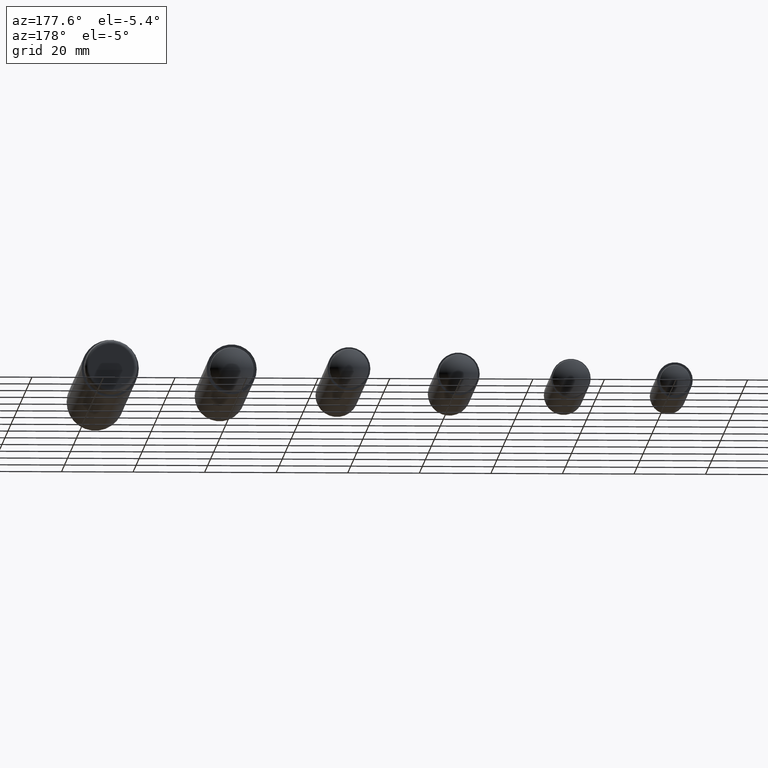
[diagram: clean part render]
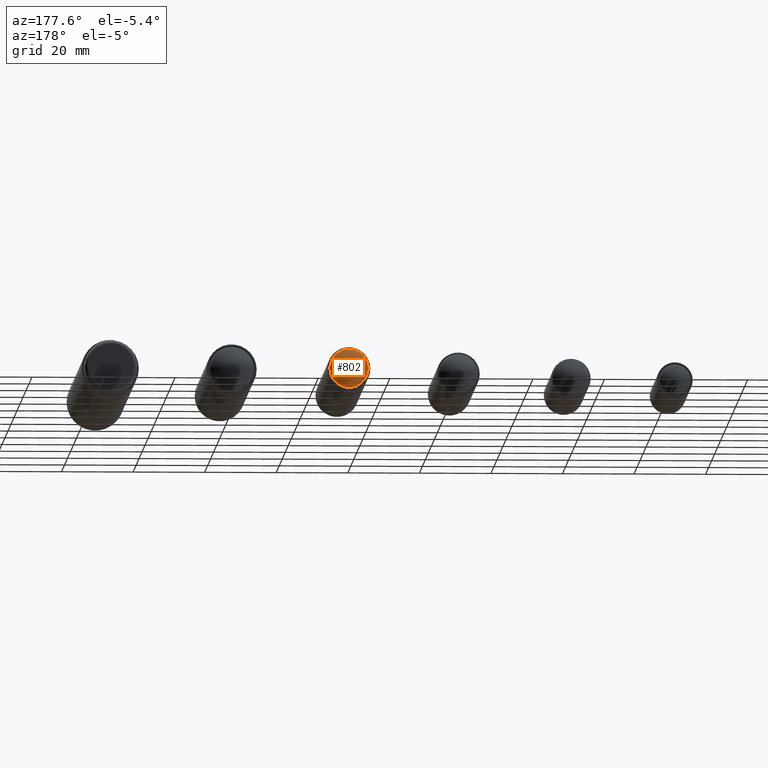
[diagram: same view with one face highlighted and labeled with its STEP entity id]
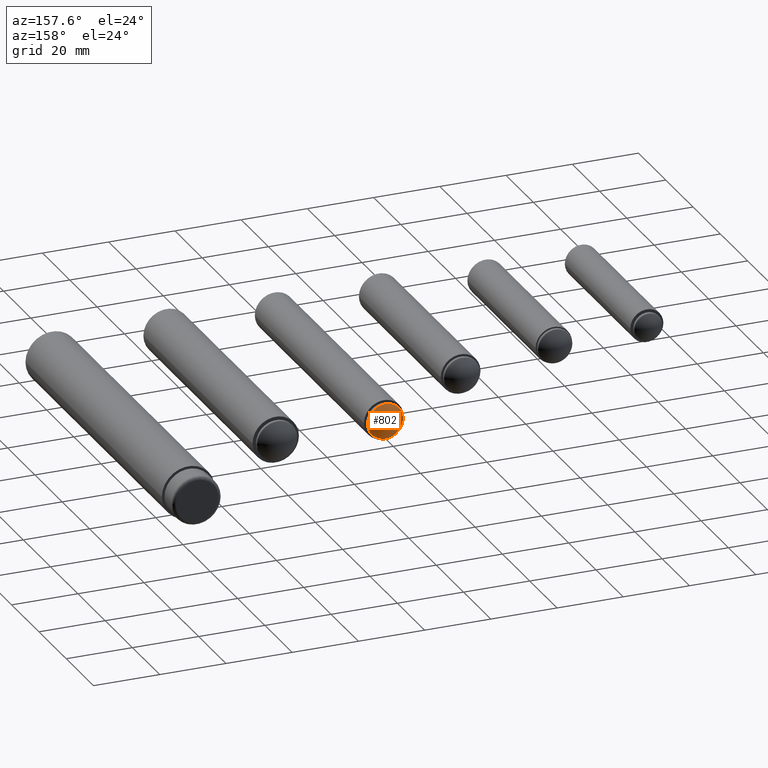
[diagram: same view with one face highlighted and labeled with its STEP entity id]
A machine part, auxiliary view. The second image highlights one B-rep face of the part: STEP entity #802.
A second angle (auxiliary view) of the same face is appended — the face is thin or edge-on in the first view.
In plain terms, the highlighted spherical surface has radius 7.3 mm.
Its self-contained STEP definition (entity closure, byte-faithful):
#110=SPHERICAL_SURFACE('',#939,7.29999999999999);
#292=FACE_OUTER_BOUND('',#393,.T.);
#393=EDGE_LOOP('',(#693));
#475=CIRCLE('',#938,5.36764705882353);
#535=VERTEX_POINT('',#1483);
#595=EDGE_CURVE('',#535,#535,#475,.T.);
#693=ORIENTED_EDGE('',*,*,#595,.F.);
#802=ADVANCED_FACE('',(#292),#110,.T.);
#938=AXIS2_PLACEMENT_3D('',#1484,#1206,#1207);
#939=AXIS2_PLACEMENT_3D('',#1485,#1208,#1209);
#1206=DIRECTION('center_axis',(4.10526254053798E-16,-1.,0.));
#1207=DIRECTION('ref_axis',(1.,4.10025548867245E-16,0.));
#1208=DIRECTION('center_axis',(6.12323399573677E-17,0.,1.));
#1209=DIRECTION('ref_axis',(1.,0.,0.));
#1483=CARTESIAN_POINT('',(-5.36764705882353,1.14756152583302,-6.57347178954094E-16));
#1484=CARTESIAN_POINT('Origin',(-1.76330373916062E-16,1.14756152583302,
0.));
#1485=CARTESIAN_POINT('Origin',(-2.44892337848938E-15,-3.79999999999998,
0.));